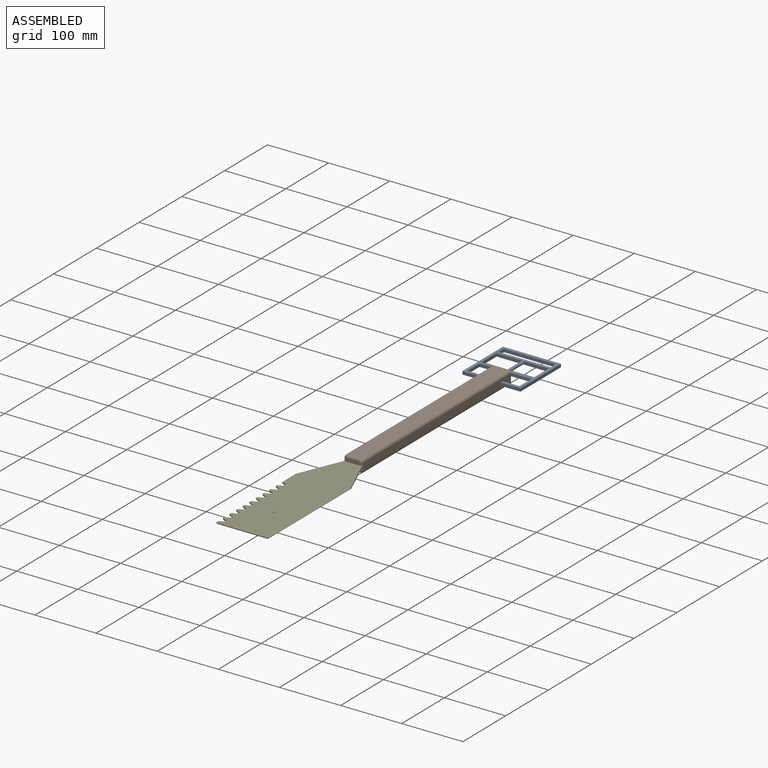
[diagram: assembled view]
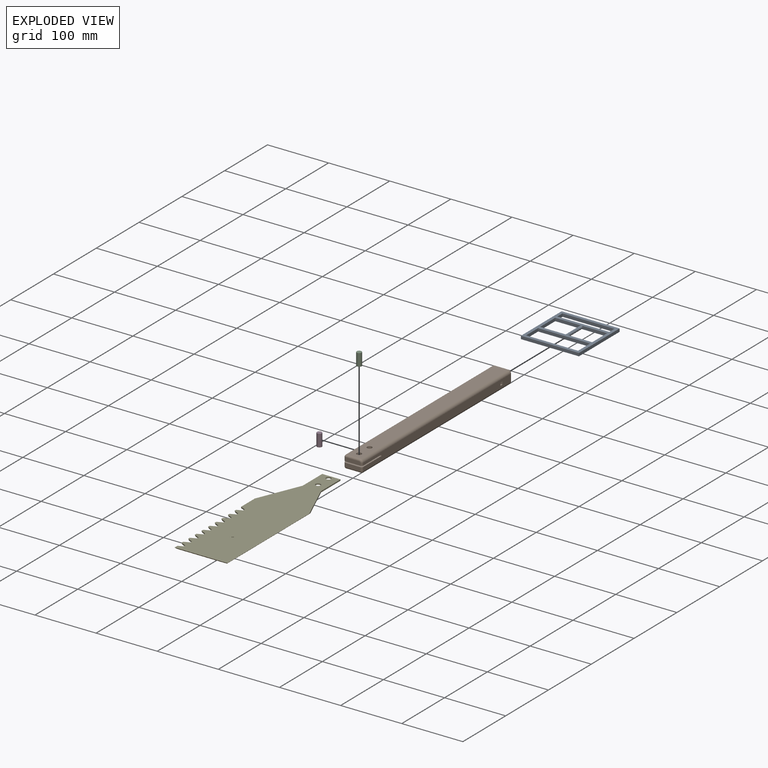
[diagram: exploded view]
GUIDED TOUR — MATED ASSEMBLY (Onshape document 7a16968860c0cefa9381ecdc, AutoMate assembly 7a16968860c0cefa9381ecdc_a2b3de3a787f19047a203f1c_fa543e789452013047f606da_default)

This assembly has 5 components, labeled P0..P4 below (a component is one placed occurrence of a part; the same part can appear more than once), held together by 7 mates. A mate is a constraint between two components; its type names the relative motion it leaves free:
  CYLINDRICAL — leaves both rotation about and translation along the listed axis free,
  FASTENED — locks the two components together rigidly (no relative motion),
  PLANAR — leaves sliding in the plane through the listed point (normal = the listed direction) and rotation about that normal free.
Axis/direction vectors are unit vectors and 'through' points are millimeter coordinates, both in the assembly's world frame.

MATES
  1. CYLINDRICAL "Cylindrical 3": P2 <-> P4, axis (0.000, 0.000, 1.000) through (0.00, 14.50, 4.05) mm
  2. FASTENED "Fastened 3": P3 <-> P4, direction (0.000, 0.000, 1.000) through (0.00, 39.00, 4.05) mm
  3. CYLINDRICAL "Cylindrical 1": P4 <-> P1, axis (0.000, 0.000, -1.000) through (0.00, 39.00, 4.05) mm
  4. PLANAR "Planar 2": P0 <-> P1, direction (0.000, -1.000, 0.000) through (0.00, 323.50, 3.05) mm
  5. PLANAR "Planar 1": P4 <-> P1, direction (0.000, 0.000, 1.000) through (0.96, -128.83, 5.05) mm
  6. FASTENED "Fastened 2": P2 <-> P4, direction (0.000, 0.000, 1.000) through (0.00, 14.50, 4.05) mm
  7. CYLINDRICAL "Cylindrical 2": P4 <-> P1, axis (0.000, 0.000, -1.000) through (0.00, 14.50, 4.05) mm

ASSEMBLY ORDER
  1. P1 — the base component [order heuristic]
  2. P2 — core [order heuristic]
  3. P3 [order verified]
  4. P4 [order verified]
  5. P0 [order verified]
(P3 verified with a relaxed clearance tolerance: the source model stores slight part interference there.)
Order-tag legend:
  [order verified] — this step's position reverses a verified removal order: the component was checked to insert without passing through the ones already placed.
  [order heuristic] — the first 2 components form the assembly's core: parts whose collision-free extraction could not be verified, listed in mate-graph order.

Of the 5 components, 4 carry the full construction recipe — the FeatureScript program that regenerates the part's solid from scratch; the rest are supplied as boundary geometry only.
Each toured component is shown spotlighted twice — in the assembled view, then in the exploded view, where a leader line traces a displaced component back to its assembled socket (saturated green if recipe-attached, orange if geometry-only; every other component desaturated gray) — followed by its recipe or geometry summary and the mates that hold it.
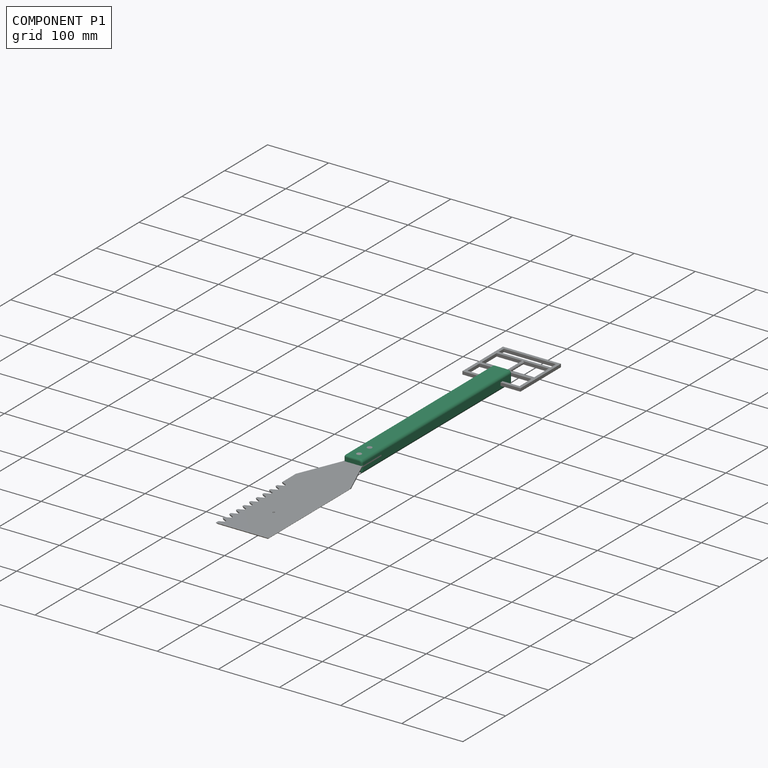
[diagram: component P1 — assembled]
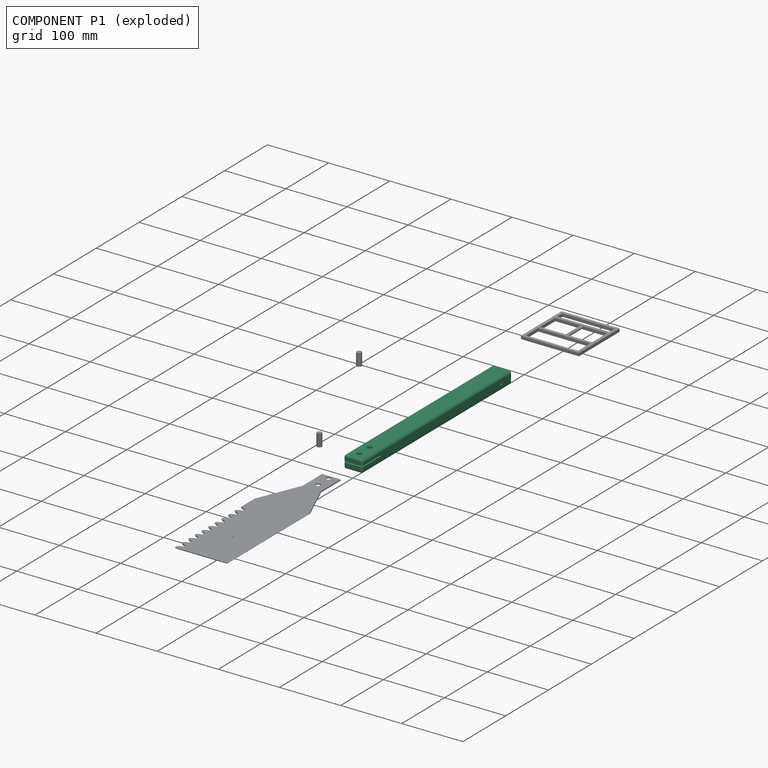
[diagram: component P1 — exploded]
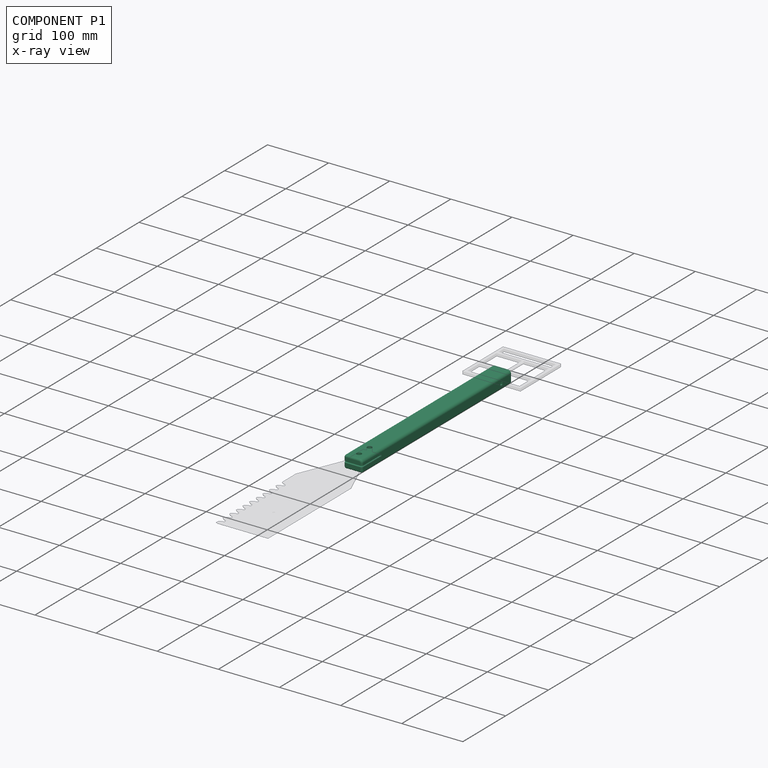
[diagram: component P1 — x-ray view]
COMPONENT P1 — recipe-attached (CADFS 00393272, mesh-verified: the recipe's output STEP matches this component's geometry to below the mesh-comparison resolution (tessellation chordal tolerance ~0.528 mm)).
Held by: CYLINDRICAL mate "Cylindrical 1" to P4; PLANAR mate "Planar 2" to P0; PLANAR mate "Planar 1" to P4; CYLINDRICAL mate "Cylindrical 2" to P4.
Construction recipe (FeatureScript — the CAD program that rebuilds this solid; sketch coordinates are in the units given by the * unit suffixes, e.g. mm):

FeatureScript 1511;
import(path : "onshape/std/geometry.fs", version : "1511.0");
import(path : "onshape/std/common.fs", version : "1511.0");
const mm = millimeter;
const VERTEX = EntityType.VERTEX;
const EDGE = EntityType.EDGE;
const FACE = EntityType.FACE;
const BODY = EntityType.BODY;
function v(x, y){return vector(x, y);}
function OD(order){return orderDisambiguation(order);}
function OSD(set){return originalSetDisambiguation(set);}
function TD(topology){return topologyDisambiguation(topology);}
function TDD(query){return trueDependencyDisambiguation(query);}
function sQuery(a, b, c) {return sketchEntityQuery(a, b, c);}

annotation { "Feature Type Name" : "Feature", "Feature Type Description" : "" }
export const myFeature = defineFeature(function(context is Context, id is Id, definition is map)
    precondition{}
    {
        {
            var Q0;
            Q0=qCreatedBy(makeId("Front.planeOp"),FACE);
            var sketch = newSketch(context, id + "F0", { "sketchPlane" : qUnion([Q0])});
            skLineSegment(sketch, "E0.bottom", {"start": v(-15, -10.1) * mm, "end": v(15, -10.1) * mm});
            skLineSegment(sketch, "E0.top", {"start": v(-15, 10.1) * mm, "end": v(15, 10.1) * mm});
            skLineSegment(sketch, "E0.left", {"start": v(-15, -10.1) * mm, "end": v(-15, 10.1) * mm});
            skLineSegment(sketch, "E0.right", {"start": v(15, -10.1) * mm, "end": v(15, 10.1) * mm});
            skPoint(sketch, "E0.middle", {"position": v(0, 0) * mm});
            skSolve(sketch);
        }
        {
            var Q0;
            Q0 = qSketchRegion(id + "F0", true);
            extrude(context, id + "F1", {"entities" : qUnion([Q0]), "oppositeDirection" : true, "depth" : 350 * mm});
        }
        {
            var Q0;
            Q0=makeQuery(id+"F1.opExtrude","SWEPT_EDGE",EDGE,{"disambiguationData":[OSD([sQuery(id+"F0.wireOp",EDGE,"E0.top"),sQuery(id+"F0.wireOp",EDGE,"E0.right")])]});
            fillet(context, id + "F2", {"entities" : qUnion([Q0]), "radius" : 5 * mm, "tangentPropagation" : true, "allowEdgeOverflow" : false});
        }
        {
            var Q0;
            Q0=makeQuery(id+"F1.opExtrude","SWEPT_EDGE",EDGE,{"disambiguationData":[OSD([sQuery(id+"F0.wireOp",EDGE,"E0.top"),sQuery(id+"F0.wireOp",EDGE,"E0.left")])]});
            var Q1;
            Q1=makeQuery(id+"F1.opExtrude","CAP_EDGE",EDGE,{"disambiguationData":[OSD([sQuery(id+"F0.wireOp",EDGE,"E0.top")])],"isStart":true});
            var Q2;
            Q2=makeQuery(id+"F1.opExtrude","SWEPT_FACE",FACE,{"disambiguationData":[OSD([sQuery(id+"F0.wireOp",EDGE,"E0.bottom")])]});
            var Q3;
            Q3=makeQuery(id+"F1.opExtrude","CAP_EDGE",EDGE,{"disambiguationData":[OSD([sQuery(id+"F0.wireOp",EDGE,"E0.left")])],"isStart":true});
            var Q4;
            Q4=makeQuery(id+"F1.opExtrude","CAP_EDGE",EDGE,{"disambiguationData":[OSD([sQuery(id+"F0.wireOp",EDGE,"E0.top")])],"isStart":false});
            var Q5;
            Q5=makeQuery(id+"F1.opExtrude","CAP_EDGE",EDGE,{"disambiguationData":[OSD([sQuery(id+"F0.wireOp",EDGE,"E0.left")])],"isStart":false});
            fillet(context, id + "F3", {"entities" : qUnion([Q0, Q1, Q2, Q3, Q4, Q5]), "radius" : 3 * mm, "tangentPropagation" : true, "allowEdgeOverflow" : false});
        }
        {
            var Q0;
            Q0=makeQuery(id+"F1.opExtrude","SWEPT_FACE",FACE,{"disambiguationData":[OSD([sQuery(id+"F0.wireOp",EDGE,"E0.right")])]});
            var sketch = newSketch(context, id + "F4", { "sketchPlane" : qUnion([Q0])});
            skLineSegment(sketch, "E1.bottom", {"start": v(0, -1) * mm, "end": v(45.5, -1) * mm});
            skLineSegment(sketch, "E1.top", {"start": v(0, 1) * mm, "end": v(45.5, 1) * mm});
            skLineSegment(sketch, "E1.left", {"start": v(0, -1) * mm, "end": v(0, 1) * mm});
            skLineSegment(sketch, "E1.right", {"start": v(45.5, -1) * mm, "end": v(45.5, 1) * mm});
            skPoint(sketch, "E1.middle", {"position": v(22.75, 0) * mm});
            skSolve(sketch);
        }
        {
            var Q0;
            Q0 = qSketchRegion(id + "F4", true);
            extrude(context, id + "F5", {"entities" : qUnion([Q0]), "operationType" : NewBodyOperationType.REMOVE, "endBound" : BoundingType.THROUGH_ALL, "oppositeDirection" : true, "depth" : 25 * mm});
        }
        {
            var Q0;
            Q0=makeQuery(id+"F1.opExtrude","SWEPT_FACE",FACE,{"disambiguationData":[OSD([sQuery(id+"F0.wireOp",EDGE,"E0.right")])]});
            var sketch = newSketch(context, id + "F6", { "sketchPlane" : qUnion([Q0])});
            skLineSegment(sketch, "E2.bottom", {"start": v(323.5, -3.5) * mm, "end": v(328.5, -3.5) * mm});
            skLineSegment(sketch, "E2.top", {"start": v(323.5, 1.5) * mm, "end": v(328.5, 1.5) * mm});
            skLineSegment(sketch, "E2.left", {"start": v(323.5, -3.5) * mm, "end": v(323.5, 1.5) * mm});
            skLineSegment(sketch, "E2.right", {"start": v(328.5, -3.5) * mm, "end": v(328.5, 1.5) * mm});
            skPoint(sketch, "E2.middle", {"position": v(326, -1) * mm});
            skPoint(sketch, "E2.middle.positionSnap0", {"position": v(347, -1) * mm});
            skPoint(sketch, "E2.centerSnap0", {"position": v(347, -1) * mm});
            skSolve(sketch);
        }
        {
            var Q0;
            Q0 = qSketchRegion(id + "F6", true);
            extrude(context, id + "F7", {"entities" : qUnion([Q0]), "operationType" : NewBodyOperationType.REMOVE, "endBound" : BoundingType.THROUGH_ALL, "oppositeDirection" : true, "depth" : 25 * mm});
        }
        {
            var Q0;
            Q0=makeQuery(id+"F1.opExtrude","SWEPT_FACE",FACE,{"disambiguationData":[OSD([sQuery(id+"F0.wireOp",EDGE,"E0.top")])]});
            var sketch = newSketch(context, id + "F8", { "sketchPlane" : qUnion([Q0])});
            skCircle(sketch, "E3", {"center": v(0, 14.5) * mm, "radius": 4 * mm});
            skCircle(sketch, "E4", {"center": v(0, 39) * mm, "radius": 4 * mm});
            skSolve(sketch);
        }
        {
            var Q0;
            Q0 = qSketchRegion(id + "F8", true);
            extrude(context, id + "F9", {"entities" : qUnion([Q0]), "operationType" : NewBodyOperationType.REMOVE, "endBound" : BoundingType.THROUGH_ALL, "oppositeDirection" : true, "depth" : 25 * mm});
        }
        {
            var Q0;
            Q0 = qSketchRegion(id + "F6", true);
            extrude(context, id + "F10", {"entities" : qUnion([Q0]), "operationType" : NewBodyOperationType.REMOVE, "endBound" : BoundingType.THROUGH_ALL, "oppositeDirection" : true, "depth" : 25 * mm});
        }
    });
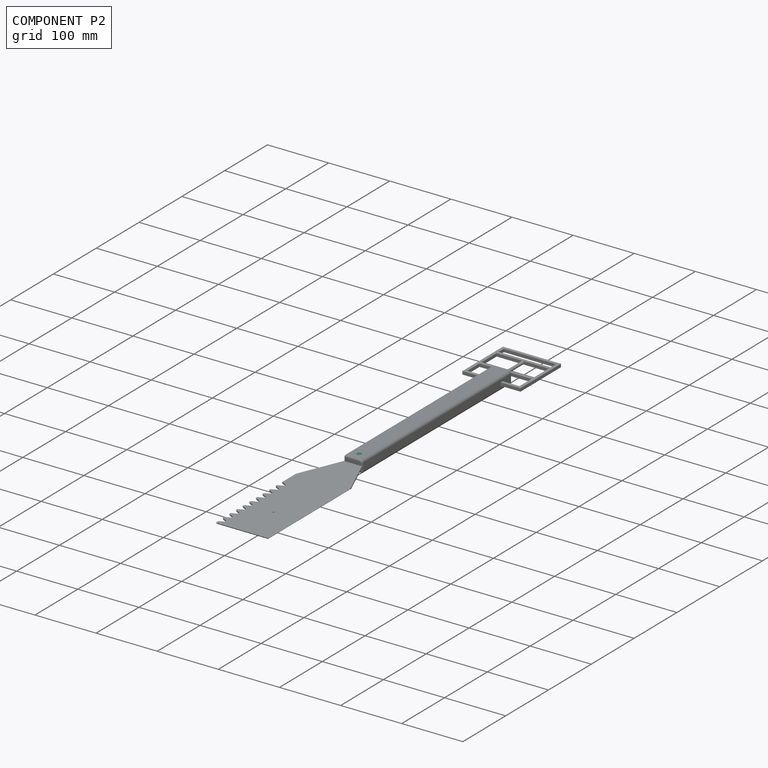
[diagram: component P2 — assembled]
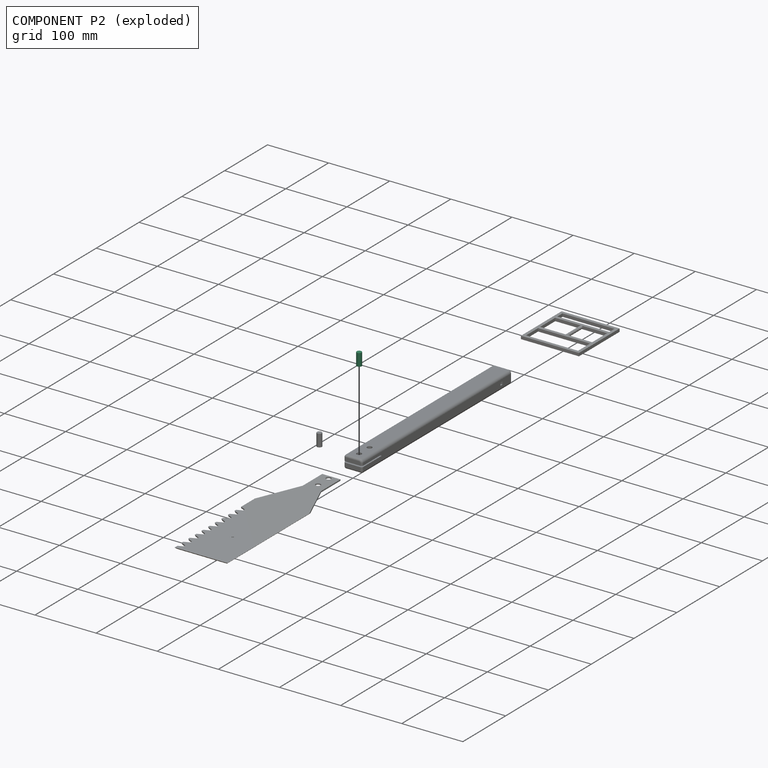
[diagram: component P2 — exploded]
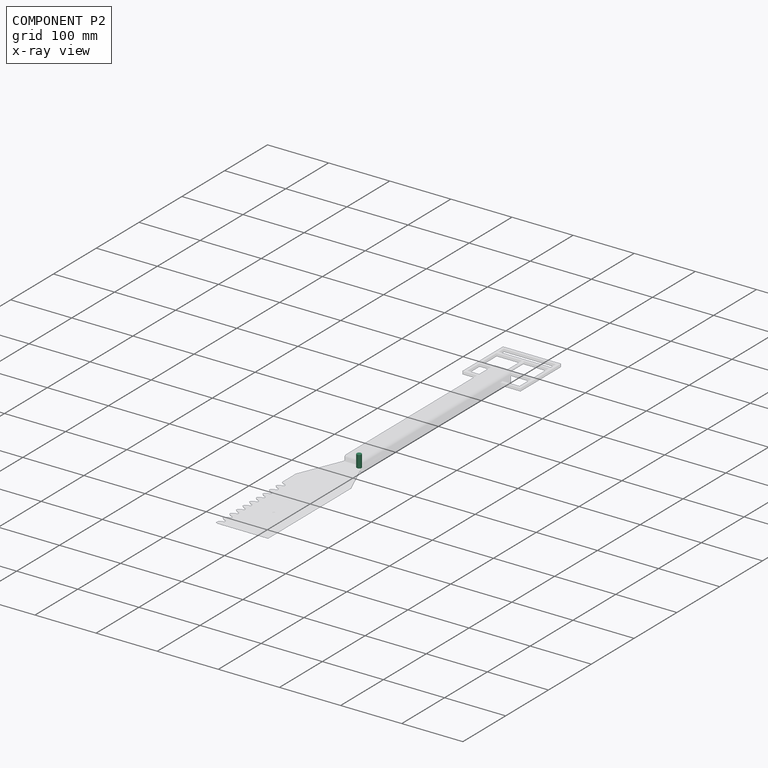
[diagram: component P2 — x-ray view]
COMPONENT P2 — recipe-attached (CADFS 00393274, mesh-verified: the recipe's output STEP matches this component's geometry to below the mesh-comparison resolution (tessellation chordal tolerance ~0.0347 mm)).
Held by: CYLINDRICAL mate "Cylindrical 3" to P4; FASTENED mate "Fastened 2" to P4.
Construction recipe (FeatureScript — the CAD program that rebuilds this solid; sketch coordinates are in the units given by the * unit suffixes, e.g. mm):

FeatureScript 1511;
import(path : "onshape/std/geometry.fs", version : "1511.0");
import(path : "onshape/std/common.fs", version : "1511.0");
const mm = millimeter;
const VERTEX = EntityType.VERTEX;
const EDGE = EntityType.EDGE;
const FACE = EntityType.FACE;
const BODY = EntityType.BODY;
function v(x, y){return vector(x, y);}
function OD(order){return orderDisambiguation(order);}
function OSD(set){return originalSetDisambiguation(set);}
function TD(topology){return topologyDisambiguation(topology);}
function TDD(query){return trueDependencyDisambiguation(query);}
function sQuery(a, b, c) {return sketchEntityQuery(a, b, c);}

annotation { "Feature Type Name" : "Feature", "Feature Type Description" : "" }
export const myFeature = defineFeature(function(context is Context, id is Id, definition is map)
    precondition{}
    {
        {
            var Q0;
            Q0=qCreatedBy(makeId("Front.planeOp"),FACE);
            var sketch = newSketch(context, id + "F0", { "sketchPlane" : qUnion([Q0])});
            skCircle(sketch, "E0", {"center": v(0, 0) * mm, "radius": 4 * mm});
            skSolve(sketch);
        }
        {
            var Q0;
            Q0 = qSketchRegion(id + "F0", true);
            extrude(context, id + "F1", {"entities" : qUnion([Q0]), "oppositeDirection" : true, "depth" : 20.2 * mm});
        }
    });
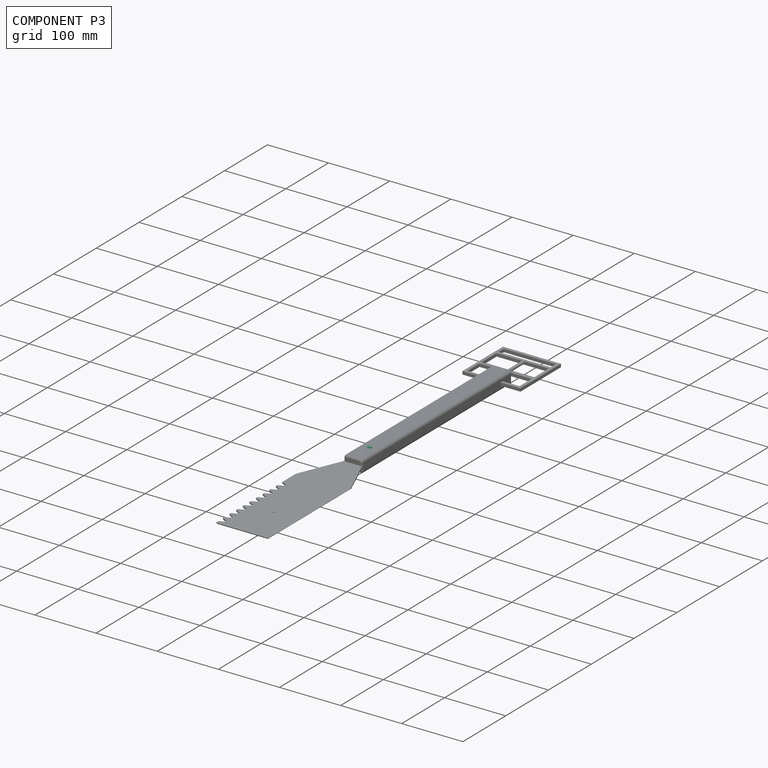
[diagram: component P3 — assembled]
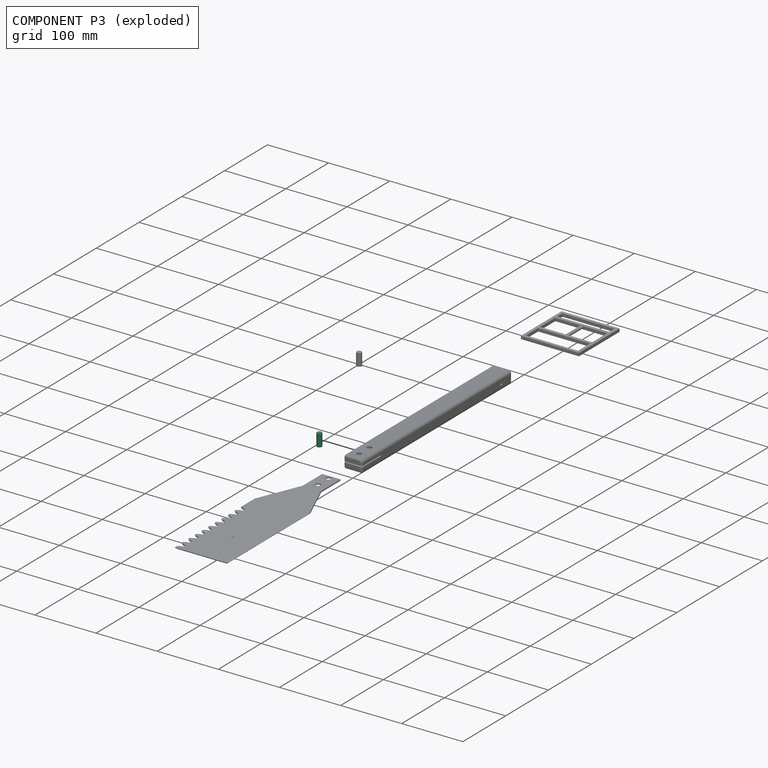
[diagram: component P3 — exploded]
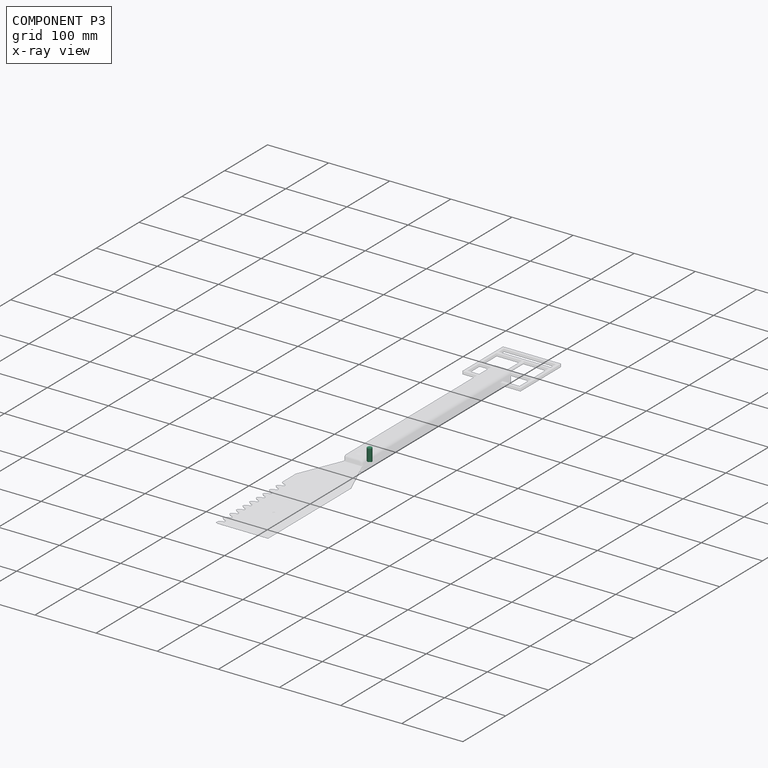
[diagram: component P3 — x-ray view]
COMPONENT P3 — same part as P2 (CADFS 00393274); its construction recipe is shown at P2.
Held by: FASTENED mate "Fastened 3" to P4.
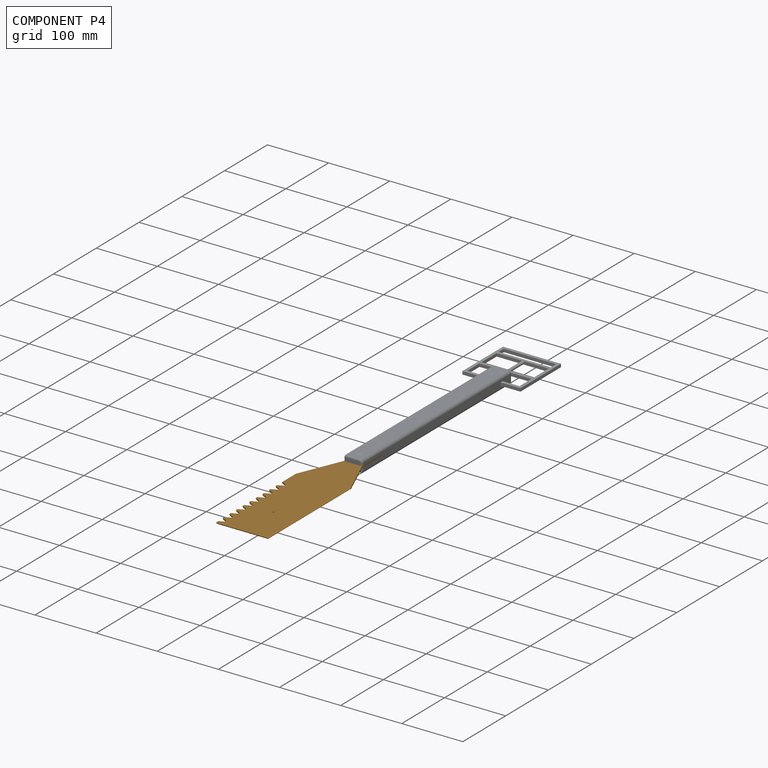
[diagram: component P4 — assembled]
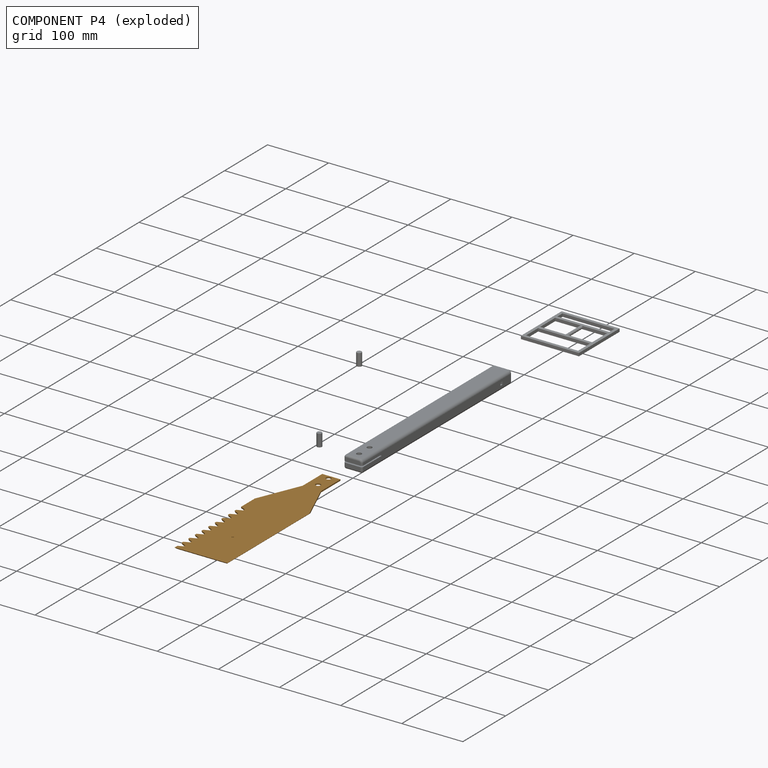
[diagram: component P4 — exploded]
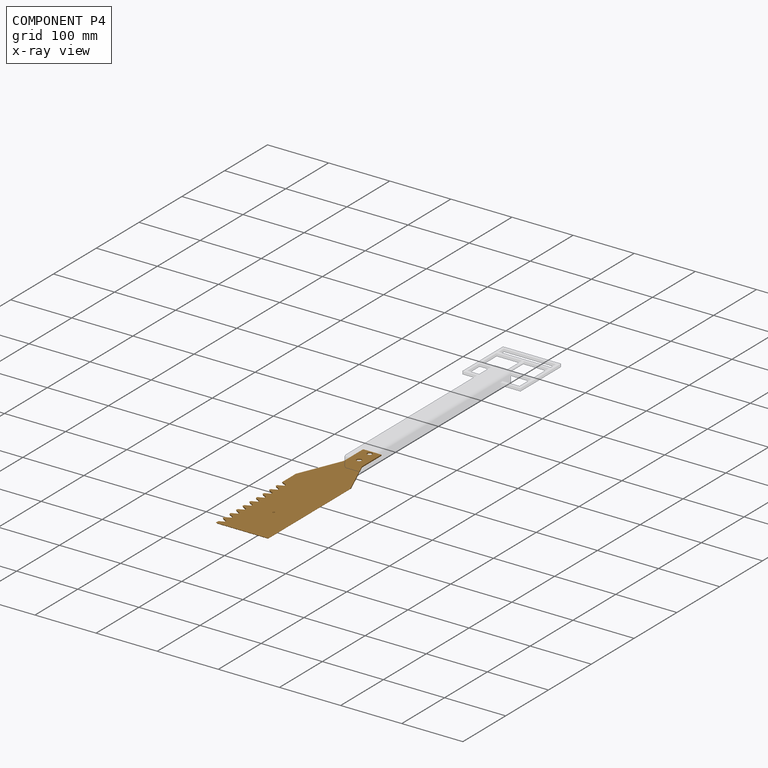
[diagram: component P4 — x-ray view]
COMPONENT P4 — geometry summary (no construction recipe available for this part):
  bounding box: 304.6 x 87.5 x 2.0 mm
  B-rep topology: 1 solid, 139 faces, 744 edges
  volume: 41571 mm^3 (78% of its bounding box)
  symmetry: mirror-symmetric across its y mid-plane
Held by: CYLINDRICAL mate "Cylindrical 3" to P2; FASTENED mate "Fastened 3" to P3; CYLINDRICAL mate "Cylindrical 1" to P1; PLANAR mate "Planar 1" to P1; FASTENED mate "Fastened 2" to P2; CYLINDRICAL mate "Cylindrical 2" to P1.
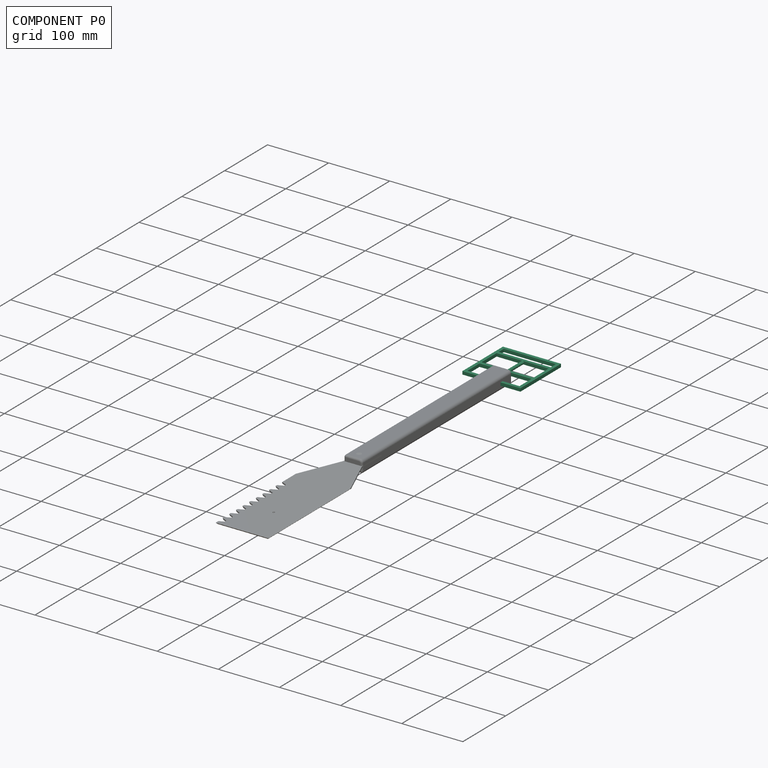
[diagram: component P0 — assembled]
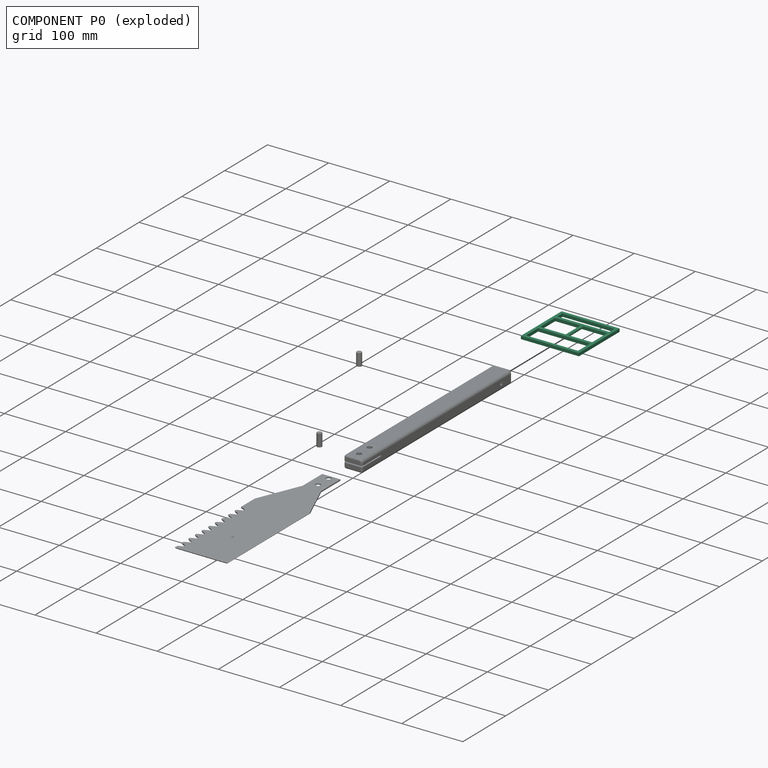
[diagram: component P0 — exploded]
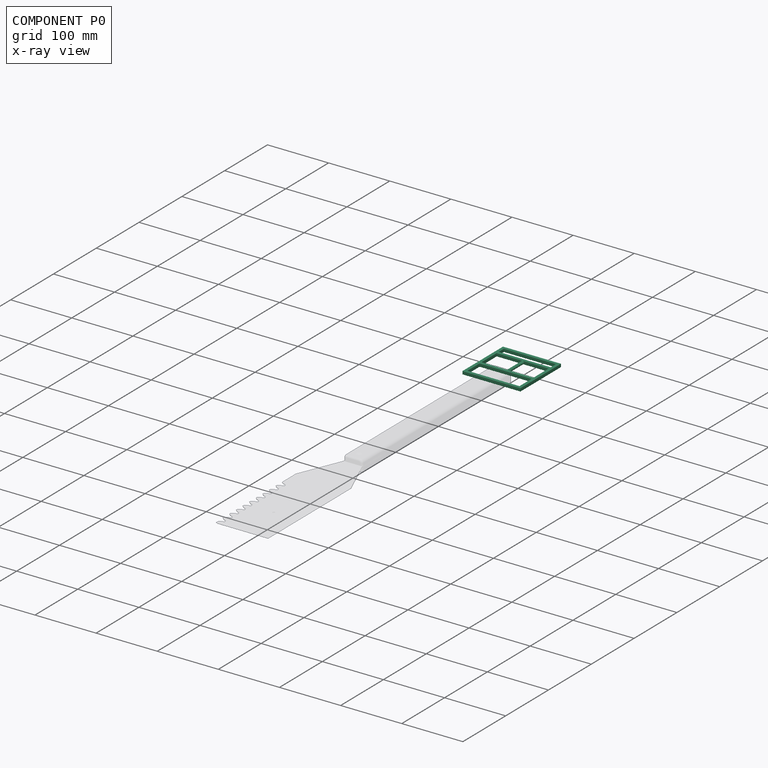
[diagram: component P0 — x-ray view]
COMPONENT P0 — recipe-attached (CADFS 00393273, mesh-verified: the recipe's output STEP matches this component's geometry to below the mesh-comparison resolution (tessellation chordal tolerance ~0.202 mm)).
Held by: PLANAR mate "Planar 2" to P1.
Construction recipe (FeatureScript — the CAD program that rebuilds this solid; sketch coordinates are in the units given by the * unit suffixes, e.g. mm):

FeatureScript 1511;
import(path : "onshape/std/geometry.fs", version : "1511.0");
import(path : "onshape/std/common.fs", version : "1511.0");
const mm = millimeter;
const VERTEX = EntityType.VERTEX;
const EDGE = EntityType.EDGE;
const FACE = EntityType.FACE;
const BODY = EntityType.BODY;
function v(x, y){return vector(x, y);}
function OD(order){return orderDisambiguation(order);}
function OSD(set){return originalSetDisambiguation(set);}
function TD(topology){return topologyDisambiguation(topology);}
function TDD(query){return trueDependencyDisambiguation(query);}
function sQuery(a, b, c) {return sketchEntityQuery(a, b, c);}

annotation { "Feature Type Name" : "Feature", "Feature Type Description" : "" }
export const myFeature = defineFeature(function(context is Context, id is Id, definition is map)
    precondition{}
    {
        {
            var Q0;
            Q0=qCreatedBy(makeId("Front.planeOp"),FACE);
            var sketch = newSketch(context, id + "F0", { "sketchPlane" : qUnion([Q0])});
            skLineSegment(sketch, "E0.bottom", {"start": v(2.5, -2.5) * mm, "end": v(-2.5, -2.5) * mm});
            skLineSegment(sketch, "E0.top", {"start": v(2.5, 2.5) * mm, "end": v(-2.5, 2.5) * mm});
            skLineSegment(sketch, "E0.left", {"start": v(2.5, -2.5) * mm, "end": v(2.5, 2.5) * mm});
            skLineSegment(sketch, "E0.right", {"start": v(-2.5, -2.5) * mm, "end": v(-2.5, 2.5) * mm});
            skPoint(sketch, "E0.middle", {"position": v(0, 0) * mm});
            skSolve(sketch);
        }
        {
            var Q0;
            Q0 = qSketchRegion(id + "F0", true);
            extrude(context, id + "F1", {"entities" : qUnion([Q0]), "oppositeDirection" : true, "depth" : 90 * mm});
        }
        {
            var Q0;
            Q0=makeQuery(id+"F1.opExtrude","SWEPT_FACE",FACE,{"disambiguationData":[OSD([sQuery(id+"F0.wireOp",EDGE,"E0.right")])]});
            var sketch = newSketch(context, id + "F2", { "sketchPlane" : qUnion([Q0])});
            skLineSegment(sketch, "E1.bottom", {"start": v(-90, 2.5) * mm, "end": v(-85, 2.5) * mm});
            skLineSegment(sketch, "E1.top", {"start": v(-90, -2.5) * mm, "end": v(-85, -2.5) * mm});
            skLineSegment(sketch, "E1.left", {"start": v(-90, 2.5) * mm, "end": v(-90, -2.5) * mm});
            skLineSegment(sketch, "E1.right", {"start": v(-85, 2.5) * mm, "end": v(-85, -2.5) * mm});
            skSolve(sketch);
        }
        {
            var Q0;
            Q0 = qSketchRegion(id + "F2", true);
            extrude(context, id + "F3", {"entities" : qUnion([Q0]), "operationType" : NewBodyOperationType.ADD, "depth" : 90 * mm});
        }
        {
            var Q0;
            Q0=makeQuery(id+"F3.opExtrude","SWEPT_FACE",FACE,{"disambiguationData":[OSD([sQuery(id+"F2.wireOp",EDGE,"E1.right")])]});
            var sketch = newSketch(context, id + "F4", { "sketchPlane" : qUnion([Q0])});
            skLineSegment(sketch, "E2.bottom", {"start": v(-92.5, 2.5) * mm, "end": v(-87.5, 2.5) * mm});
            skLineSegment(sketch, "E2.top", {"start": v(-92.5, -2.5) * mm, "end": v(-87.5, -2.5) * mm});
            skLineSegment(sketch, "E2.left", {"start": v(-92.5, 2.5) * mm, "end": v(-92.5, -2.5) * mm});
            skLineSegment(sketch, "E2.right", {"start": v(-87.5, 2.5) * mm, "end": v(-87.5, -2.5) * mm});
            skSolve(sketch);
        }
        {
            var Q0;
            Q0 = qSketchRegion(id + "F4", true);
            extrude(context, id + "F5", {"entities" : qUnion([Q0]), "operationType" : NewBodyOperationType.ADD, "depth" : 90 * mm});
        }
        {
            var Q0;
            Q0=makeQuery(id+"F5.opExtrude","SWEPT_FACE",FACE,{"disambiguationData":[OSD([sQuery(id+"F4.wireOp",EDGE,"E2.right")])]});
            var sketch = newSketch(context, id + "F6", { "sketchPlane" : qUnion([Q0])});
            skLineSegment(sketch, "E3.bottom", {"start": v(-5, 2.5) * mm, "end": v(0, 2.5) * mm});
            skLineSegment(sketch, "E3.top", {"start": v(-5, -2.5) * mm, "end": v(0, -2.5) * mm});
            skLineSegment(sketch, "E3.left", {"start": v(-5, 2.5) * mm, "end": v(-5, -2.5) * mm});
            skLineSegment(sketch, "E3.right", {"start": v(0, 2.5) * mm, "end": v(0, -2.5) * mm});
            skSolve(sketch);
        }
        {
            var Q0;
            Q0 = qSketchRegion(id + "F6", true);
            extrude(context, id + "F7", {"entities" : qUnion([Q0]), "operationType" : NewBodyOperationType.ADD, "depth" : 90 * mm});
        }
        {
            var Q0;
            Q0=makeQuery(id+"F5.opExtrude","SWEPT_FACE",FACE,{"disambiguationData":[OSD([sQuery(id+"F4.wireOp",EDGE,"E2.right")])]});
            var sketch = newSketch(context, id + "F8", { "sketchPlane" : qUnion([Q0])});
            skLineSegment(sketch, "E4.bottom", {"start": v(68, -2.5) * mm, "end": v(73, -2.5) * mm});
            skLineSegment(sketch, "E4.top", {"start": v(68, 2.5) * mm, "end": v(73, 2.5) * mm});
            skLineSegment(sketch, "E4.left", {"start": v(68, -2.5) * mm, "end": v(68, 2.5) * mm});
            skLineSegment(sketch, "E4.right", {"start": v(73, -2.5) * mm, "end": v(73, 2.5) * mm});
            skPoint(sketch, "E4.middle", {"position": v(70.5, 0) * mm});
            skPoint(sketch, "E4.middle.positionSnap0", {"position": v(85, 0) * mm});
            skPoint(sketch, "E4.centerSnap0", {"position": v(85, 0) * mm});
            skSolve(sketch);
        }
        {
            var Q0;
            Q0 = qSketchRegion(id + "F8", true);
            extrude(context, id + "F9", {"entities" : qUnion([Q0]), "operationType" : NewBodyOperationType.ADD, "depth" : 90 * mm});
        }
        {
            var Q0;
            Q0=makeQuery(id+"F9.opExtrude","SWEPT_FACE",FACE,{"disambiguationData":[OSD([sQuery(id+"F8.wireOp",EDGE,"E4.left")])]});
            var sketch = newSketch(context, id + "F10", { "sketchPlane" : qUnion([Q0])});
            skPoint(sketch, "E5.middle.positionSnap0", {"position": v(-45, 2.5) * mm});
            skPoint(sketch, "E5.middle.positionSnap1", {"position": v(-87.5, 0) * mm});
            skPoint(sketch, "E5.centerSnap0", {"position": v(-45, 2.5) * mm});
            skPoint(sketch, "E5.centerSnap1", {"position": v(-87.5, 0) * mm});
            skCircle(sketch, "E6", {"center": v(-45, 0) * mm, "radius": 2.5 * mm});
            skSolve(sketch);
        }
        {
            var Q0;
            Q0 = qSketchRegion(id + "F10", true);
            extrude(context, id + "F11", {"entities" : qUnion([Q0]), "operationType" : NewBodyOperationType.ADD, "depth" : 35 * mm});
        }
        {
            var Q0;
            Q0=makeQuery(id+"F9.boolean.opBoolean","SPLIT",FACE,{"disambiguationData":[TD([makeQuery(id+"F7.opExtrude","SWEPT_FACE",FACE,{"disambiguationData":[OSD([sQuery(id+"F6.wireOp",EDGE,"E3.right")])]})])],"derivedFrom":makeQuery(id+"F5.opExtrude","SWEPT_FACE",FACE,{"disambiguationData":[OSD([sQuery(id+"F4.wireOp",EDGE,"E2.right")])]})});
            var sketch = newSketch(context, id + "F12", { "sketchPlane" : qUnion([Q0])});
            skLineSegment(sketch, "E7.bottom", {"start": v(33, -2.5) * mm, "end": v(28, -2.5) * mm});
            skLineSegment(sketch, "E7.top", {"start": v(33, 2.5) * mm, "end": v(28, 2.5) * mm});
            skLineSegment(sketch, "E7.left", {"start": v(33, -2.5) * mm, "end": v(33, 2.5) * mm});
            skLineSegment(sketch, "E7.right", {"start": v(28, -2.5) * mm, "end": v(28, 2.5) * mm});
            skPoint(sketch, "E7.middle", {"position": v(30.5, 0) * mm});
            skSolve(sketch);
        }
        {
            var Q0;
            Q0 = qSketchRegion(id + "F12", true);
            extrude(context, id + "F13", {"entities" : qUnion([Q0]), "operationType" : NewBodyOperationType.ADD, "depth" : 85 * mm});
        }
        {
            var Q0;
            Q0=makeQuery(id+"F13.boolean.opBoolean","MERGE",FACE,{"derivedFrom":[makeQuery(id+"F9.boolean.opBoolean","MERGE",FACE,{"derivedFrom":[makeQuery(id+"F7.boolean.opBoolean","MERGE",FACE,{"derivedFrom":[makeQuery(id+"F5.boolean.opBoolean","MERGE",FACE,{"derivedFrom":[makeQuery(id+"F3.boolean.opBoolean","MERGE",FACE,{"derivedFrom":[makeQuery(id+"F1.opExtrude","SWEPT_FACE",FACE,{"disambiguationData":[OSD([sQuery(id+"F0.wireOp",EDGE,"E0.bottom")])]}),makeQuery(id+"F3.opExtrude","SWEPT_FACE",FACE,{"disambiguationData":[OSD([sQuery(id+"F2.wireOp",EDGE,"E1.top")])]})]}),makeQuery(id+"F5.opExtrude","SWEPT_FACE",FACE,{"disambiguationData":[OSD([sQuery(id+"F4.wireOp",EDGE,"E2.top")])]})]}),makeQuery(id+"F7.opExtrude","SWEPT_FACE",FACE,{"disambiguationData":[OSD([sQuery(id+"F6.wireOp",EDGE,"E3.top")])]})]}),makeQuery(id+"F9.opExtrude","SWEPT_FACE",FACE,{"disambiguationData":[OSD([sQuery(id+"F8.wireOp",EDGE,"E4.bottom")])]})]}),makeQuery(id+"F13.opExtrude","SWEPT_FACE",FACE,{"disambiguationData":[OSD([sQuery(id+"F12.wireOp",EDGE,"E7.bottom")])]})]});
            var sketch = newSketch(context, id + "F14", { "sketchPlane" : qUnion([Q0])});
            skLineSegment(sketch, "E8.bottom", {"start": v(-67.5, -32.5) * mm, "end": v(-62.5, -32.5) * mm});
            skLineSegment(sketch, "E8.top", {"start": v(-67.5, -28.5) * mm, "end": v(-62.5, -28.5) * mm});
            skLineSegment(sketch, "E8.left", {"start": v(-67.5, -32.5) * mm, "end": v(-67.5, -28.5) * mm});
            skLineSegment(sketch, "E8.right", {"start": v(-62.5, -32.5) * mm, "end": v(-62.5, -28.5) * mm});
            skPoint(sketch, "E8.middle", {"position": v(-65, -30.5) * mm});
            skLineSegment(sketch, "E9.bottom", {"start": v(-27.5, -32.5) * mm, "end": v(-22.5, -32.5) * mm});
            skLineSegment(sketch, "E9.top", {"start": v(-27.5, -28.5) * mm, "end": v(-22.5, -28.5) * mm});
            skLineSegment(sketch, "E9.left", {"start": v(-27.5, -32.5) * mm, "end": v(-27.5, -28.5) * mm});
            skLineSegment(sketch, "E9.right", {"start": v(-22.5, -32.5) * mm, "end": v(-22.5, -28.5) * mm});
            skPoint(sketch, "E9.middle", {"position": v(-25, -30.5) * mm});
            skSolve(sketch);
        }
        {
            var Q0;
            Q0 = qSketchRegion(id + "F14", true);
            extrude(context, id + "F15", {"entities" : qUnion([Q0]), "operationType" : NewBodyOperationType.REMOVE, "oppositeDirection" : true, "depth" : 0.3 * mm});
        }
        {
            var Q0;
            Q0=makeQuery(id+"F15.boolean.opBoolean","COPY",FACE,{"derivedFrom":makeQuery(id+"F15.opExtrude","CAP_FACE",FACE,{"disambiguationData":[OSD([sQuery(id+"F14.wireOp",EDGE,"E8.bottom"),sQuery(id+"F14.wireOp",EDGE,"E8.top"),sQuery(id+"F14.wireOp",EDGE,"E8.left"),sQuery(id+"F14.wireOp",EDGE,"E8.right")])],"isStart":false})});
            var sketch = newSketch(context, id + "F16", { "sketchPlane" : qUnion([Q0])});
            skCircle(sketch, "E10", {"center": v(-65, -30.5) * mm, "radius": 0.8 * mm});
            skPoint(sketch, "E10.centerSnap0", {"position": v(-62.5, -30.5) * mm});
            skPoint(sketch, "E10.centerSnap1", {"position": v(-65, -28.5) * mm});
            skSolve(sketch);
        }
        {
            var Q0;
            Q0 = qSketchRegion(id + "F16", true);
            extrude(context, id + "F17", {"entities" : qUnion([Q0]), "operationType" : NewBodyOperationType.ADD, "depth" : 0.3 * mm});
        }
        {
            var Q0;
            Q0=makeQuery(id+"F15.boolean.opBoolean","COPY",FACE,{"derivedFrom":makeQuery(id+"F15.opExtrude","CAP_FACE",FACE,{"disambiguationData":[OSD([sQuery(id+"F14.wireOp",EDGE,"E8.bottom"),sQuery(id+"F14.wireOp",EDGE,"E8.top"),sQuery(id+"F14.wireOp",EDGE,"E8.left"),sQuery(id+"F14.wireOp",EDGE,"E8.right")])],"isStart":false})});
            var sketch = newSketch(context, id + "F18", { "sketchPlane" : qUnion([Q0])});
            skLineSegment(sketch, "E11.bottom", {"start": v(-64, -31.5) * mm, "end": v(-66, -31.5) * mm});
            skLineSegment(sketch, "E11.top", {"start": v(-64, -29.5) * mm, "end": v(-66, -29.5) * mm});
            skLineSegment(sketch, "E11.left", {"start": v(-64, -31.5) * mm, "end": v(-64, -29.5) * mm});
            skLineSegment(sketch, "E11.right", {"start": v(-66, -31.5) * mm, "end": v(-66, -29.5) * mm});
            skPoint(sketch, "E11.middle", {"position": v(-65, -30.5) * mm});
            skLineSegment(sketch, "E12.bottom", {"start": v(-63.75, -31.75) * mm, "end": v(-66.25, -31.75) * mm});
            skLineSegment(sketch, "E12.top", {"start": v(-63.75, -29.25) * mm, "end": v(-66.25, -29.25) * mm});
            skLineSegment(sketch, "E12.left", {"start": v(-63.75, -31.75) * mm, "end": v(-63.75, -29.25) * mm});
            skLineSegment(sketch, "E12.right", {"start": v(-66.25, -31.75) * mm, "end": v(-66.25, -29.25) * mm});
            skSolve(sketch);
        }
        {
            var Q0;
            Q0 = qSketchRegion(id + "F18", true);
            extrude(context, id + "F19", {"entities" : qUnion([Q0]), "operationType" : NewBodyOperationType.REMOVE, "oppositeDirection" : true, "depth" : 0.3 * mm});
        }
        {
            var Q0;
            Q0=makeQuery(id+"F15.boolean.opBoolean","COPY",FACE,{"derivedFrom":makeQuery(id+"F15.opExtrude","CAP_FACE",FACE,{"disambiguationData":[OSD([sQuery(id+"F14.wireOp",EDGE,"E9.bottom"),sQuery(id+"F14.wireOp",EDGE,"E9.top"),sQuery(id+"F14.wireOp",EDGE,"E9.left"),sQuery(id+"F14.wireOp",EDGE,"E9.right")])],"isStart":false})});
            var sketch = newSketch(context, id + "F20", { "sketchPlane" : qUnion([Q0])});
            skCircle(sketch, "E13", {"center": v(-25, -30.5) * mm, "radius": 0.8 * mm});
            skPoint(sketch, "E13.centerSnap0", {"position": v(-22.5, -30.5) * mm});
            skPoint(sketch, "E13.centerSnap1", {"position": v(-25, -28.5) * mm});
            skSolve(sketch);
        }
        {
            var Q0;
            Q0 = qSketchRegion(id + "F20", true);
            extrude(context, id + "F21", {"entities" : qUnion([Q0]), "operationType" : NewBodyOperationType.ADD, "depth" : 0.3 * mm});
        }
        {
            var Q0;
            Q0=makeQuery(id+"F15.boolean.opBoolean","COPY",FACE,{"derivedFrom":makeQuery(id+"F15.opExtrude","CAP_FACE",FACE,{"disambiguationData":[OSD([sQuery(id+"F14.wireOp",EDGE,"E9.bottom"),sQuery(id+"F14.wireOp",EDGE,"E9.top"),sQuery(id+"F14.wireOp",EDGE,"E9.left"),sQuery(id+"F14.wireOp",EDGE,"E9.right")])],"isStart":false})});
            var sketch = newSketch(context, id + "F22", { "sketchPlane" : qUnion([Q0])});
            skLineSegment(sketch, "E14.bottom", {"start": v(-26, -31.5) * mm, "end": v(-24, -31.5) * mm});
            skLineSegment(sketch, "E14.top", {"start": v(-26, -29.5) * mm, "end": v(-24, -29.5) * mm});
            skLineSegment(sketch, "E14.left", {"start": v(-26, -31.5) * mm, "end": v(-26, -29.5) * mm});
            skLineSegment(sketch, "E14.right", {"start": v(-24, -31.5) * mm, "end": v(-24, -29.5) * mm});
            skPoint(sketch, "E14.middle", {"position": v(-25, -30.5) * mm});
            skLineSegment(sketch, "E15.bottom", {"start": v(-26.25, -31.75) * mm, "end": v(-23.75, -31.75) * mm});
            skLineSegment(sketch, "E15.top", {"start": v(-26.25, -29.25) * mm, "end": v(-23.75, -29.25) * mm});
            skLineSegment(sketch, "E15.left", {"start": v(-26.25, -31.75) * mm, "end": v(-26.25, -29.25) * mm});
            skLineSegment(sketch, "E15.right", {"start": v(-23.75, -31.75) * mm, "end": v(-23.75, -29.25) * mm});
            skSolve(sketch);
        }
        {
            var Q0;
            Q0 = qSketchRegion(id + "F22", true);
            extrude(context, id + "F23", {"entities" : qUnion([Q0]), "operationType" : NewBodyOperationType.REMOVE, "oppositeDirection" : true, "depth" : 0.3 * mm});
        }
    });
PROVENANCE & LICENSES
Assembly (occurrences, transforms, mates, per-part STEP geometry): AutoMate dataset, Zenodo record 7776208, CC0.
Construction recipes: CADFS (HuggingFace VladPyatov/CADFS, CC-BY-4.0, layered over the ABC dataset), FeatureScript reconstruction programs keyed by ABC model id.
Join: ABC meta listings map ABC model id -> Onshape documentId; within a shared document, parts are matched by geometric signature (bounding-box dims + volume at 0.1% relative tolerance, exact B-rep face/solid counts).
Verification: 4 of this assembly's 5 components carry a recipe attachment, and every attachment is mesh-verified: the CADFS STEP and the AutoMate member STEP were compared as meshes in their shared local frame (symmetric sampled-point-to-mesh distance); worst across the 4 attachments: below the mesh-comparison resolution (tessellation chordal tolerance ~0.528 mm) on a 352 mm part.
Renders: orthographic iso camera (az 35 / el 25); the floor grid conveys scale (grid pitch printed in each image; no ruler). In the exploded view each component is displaced by its stored offset vector: the offsets alone carry the explosion direction (mate normal/axis signs are not orientation cues and do not encode it), and separation distances are assigned per mate-chain, not proportionally to assembly-order depth.
